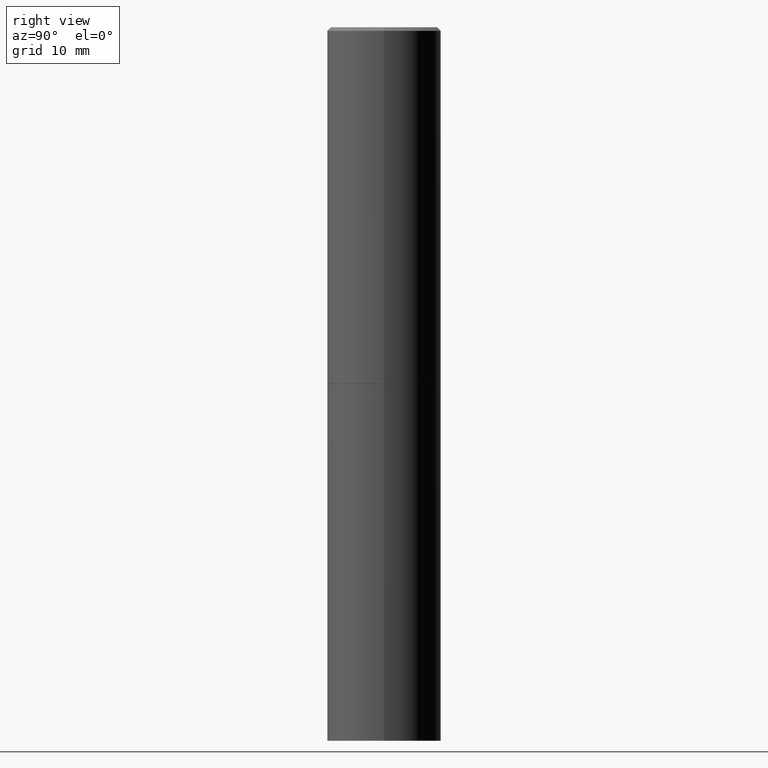
[diagram: clean part render]
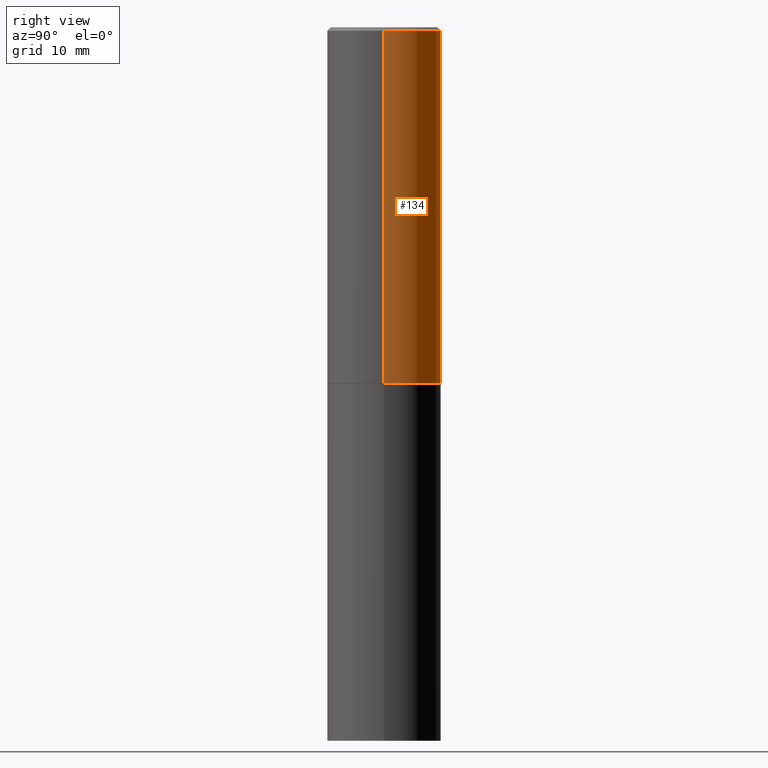
[diagram: same view with one face highlighted and labeled with its STEP entity id]
A machine part, right view. The second image highlights one B-rep face of the part: STEP entity #134.
In plain terms, the highlighted cylindrical surface (partial cylindrical patch) has radius 7.9997 mm, axis along (-0, 0, 1).
Its self-contained STEP definition (entity closure, byte-faithful):
#18 = CIRCLE ( 'NONE', #288, 0.3149499999999997302 ) ;
#26 = DIRECTION ( 'NONE',  ( 1.000000000000000000, -6.982962677686266711E-15, 0.000000000000000000 ) ) ;
#41 = CYLINDRICAL_SURFACE ( 'NONE', #204, 0.3149499999999998967 ) ;
#43 = LINE ( 'NONE', #162, #300 ) ;
#46 = ORIENTED_EDGE ( 'NONE', *, *, #274, .F. ) ;
#47 = DIRECTION ( 'NONE',  ( -2.445468806185136877E-29, 3.491481338843145188E-15, 1.000000000000000000 ) ) ;
#51 = ORIENTED_EDGE ( 'NONE', *, *, #164, .T. ) ;
#65 = DIRECTION ( 'NONE',  ( -2.445468806185136597E-29, 3.491481338843145583E-15, 1.000000000000000000 ) ) ;
#79 = CARTESIAN_POINT ( 'NONE',  ( -0.3149499999999997302, 2.129454468560424601E-15, -0.02000000000000008021 ) ) ;
#80 = CARTESIAN_POINT ( 'NONE',  ( 0.3149499999999998967, -2.199284095337288688E-15, 1.535751875536929289E-29 ) ) ;
#86 = ORIENTED_EDGE ( 'NONE', *, *, #211, .T. ) ;
#105 = DIRECTION ( 'NONE',  ( -2.445468806185136597E-29, 3.491481338843145583E-15, 1.000000000000000000 ) ) ;
#110 = CARTESIAN_POINT ( 'NONE',  ( 0.000000000000000000, 0.000000000000000000, 0.000000000000000000 ) ) ;
#113 = VERTEX_POINT ( 'NONE', #79 ) ;
#121 = CIRCLE ( 'NONE', #232, 0.3149500000000000077 ) ;
#134 = ADVANCED_FACE ( 'NONE', ( #182 ), #41, .T. ) ;
#157 = DIRECTION ( 'NONE',  ( 1.000000000000000000, -6.982962677686269866E-15, 0.000000000000000000 ) ) ;
#162 = CARTESIAN_POINT ( 'NONE',  ( -0.3149499999999998967, 2.237854346276434801E-15, -1.549218606675782116E-29 ) ) ;
#164 = EDGE_CURVE ( 'NONE', #173, #364, #121, .T. ) ;
#169 = LINE ( 'NONE', #80, #188 ) ;
#173 = VERTEX_POINT ( 'NONE', #304 ) ;
#182 = FACE_OUTER_BOUND ( 'NONE', #186, .T. ) ;
#186 = EDGE_LOOP ( 'NONE', ( #51, #86, #46, #227 ) ) ;
#188 = VECTOR ( 'NONE', #47, 39.37007874015748143 ) ;
#193 = CARTESIAN_POINT ( 'NONE',  ( -0.3149500000000000077, -1.231805234198938239E-15, -1.967500000000000027 ) ) ;
#204 = AXIS2_PLACEMENT_3D ( 'NONE', #110, #273, #362 ) ;
#211 = EDGE_CURVE ( 'NONE', #364, #113, #43, .T. ) ;
#220 = CARTESIAN_POINT ( 'NONE',  ( 0.3149499999999997302, -2.230543471175005478E-15, -0.02000000000000008021 ) ) ;
#227 = ORIENTED_EDGE ( 'NONE', *, *, #325, .F. ) ;
#232 = AXIS2_PLACEMENT_3D ( 'NONE', #313, #65, #157 ) ;
#266 = DIRECTION ( 'NONE',  ( -2.445468806185136877E-29, 3.491481338843145188E-15, 1.000000000000000000 ) ) ;
#273 = DIRECTION ( 'NONE',  ( -2.445468806185136597E-29, 3.491481338843145583E-15, 1.000000000000000000 ) ) ;
#274 = EDGE_CURVE ( 'NONE', #327, #113, #18, .T. ) ;
#285 = CARTESIAN_POINT ( 'NONE',  ( 4.890937612370293302E-31, -6.982962677686318726E-17, -0.02000000000000008021 ) ) ;
#288 = AXIS2_PLACEMENT_3D ( 'NONE', #285, #105, #26 ) ;
#300 = VECTOR ( 'NONE', #266, 39.37007874015748143 ) ;
#304 = CARTESIAN_POINT ( 'NONE',  ( 0.3149500000000000077, -9.068773629511178571E-15, -1.967500000000000027 ) ) ;
#313 = CARTESIAN_POINT ( 'NONE',  ( 4.811459876169256232E-29, -6.869489534173888700E-15, -1.967500000000000027 ) ) ;
#325 = EDGE_CURVE ( 'NONE', #173, #327, #169, .T. ) ;
#327 = VERTEX_POINT ( 'NONE', #220 ) ;
#362 = DIRECTION ( 'NONE',  ( 1.000000000000000000, -6.982962677686265922E-15, 4.876176775795935232E-29 ) ) ;
#364 = VERTEX_POINT ( 'NONE', #193 ) ;